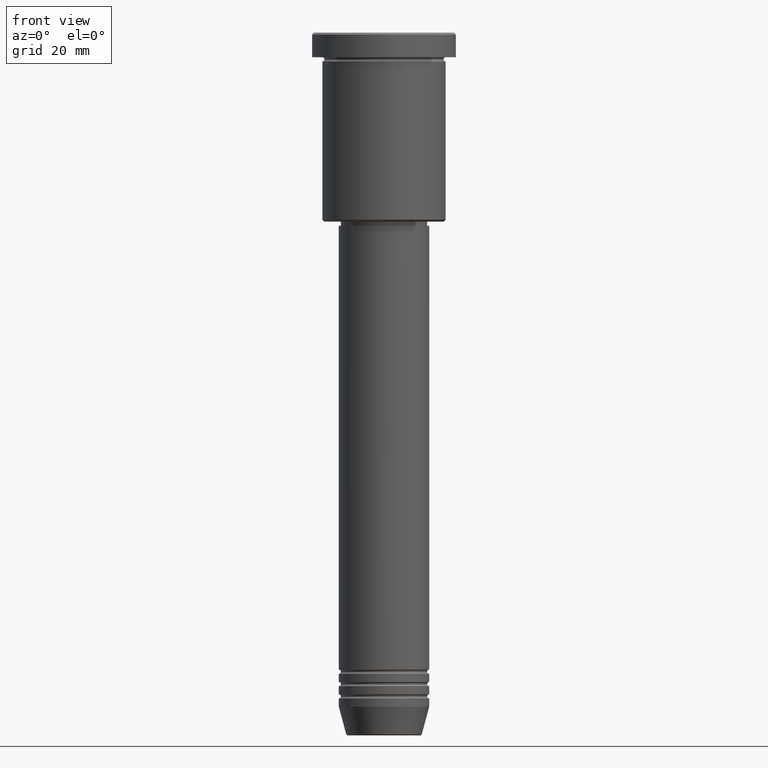
[diagram: clean part render]
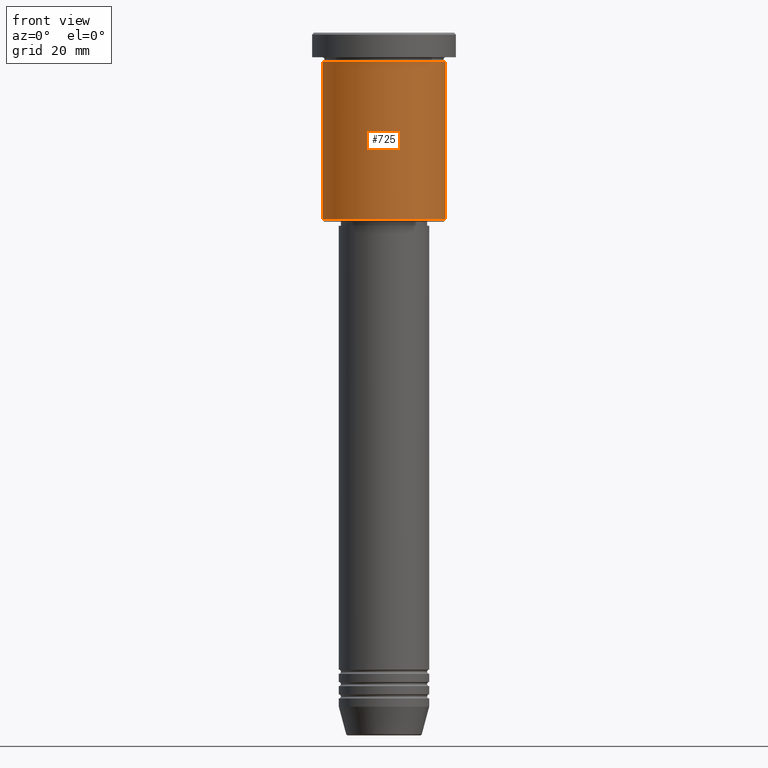
[diagram: same view with one face highlighted and labeled with its STEP entity id]
A machine part, front view. The second image highlights one B-rep face of the part: STEP entity #725.
In plain terms, the highlighted cylindrical surface (partial cylindrical patch) has radius 15 mm, axis along (-0, -0, 1).
Its self-contained STEP definition (entity closure, byte-faithful):
#5 = CIRCLE ( 'NONE', #1005, 15.00000000000000000 ) ;
#44 = VERTEX_POINT ( 'NONE', #337 ) ;
#60 = VECTOR ( 'NONE', #363, 1000.000000000000000 ) ;
#80 = EDGE_CURVE ( 'NONE', #930, #1011, #5, .T. ) ;
#104 = CARTESIAN_POINT ( 'NONE',  ( 15.00000000000000000, 0.000000000000000000, 0.000000000000000000 ) ) ;
#119 = AXIS2_PLACEMENT_3D ( 'NONE', #358, #1090, #834 ) ;
#154 = CARTESIAN_POINT ( 'NONE',  ( -15.00000000000000000, 1.836970198721029589E-15, 0.000000000000000000 ) ) ;
#182 = VERTEX_POINT ( 'NONE', #583 ) ;
#259 = LINE ( 'NONE', #104, #874 ) ;
#337 = CARTESIAN_POINT ( 'NONE',  ( 15.00000000000000000, 0.000000000000000000, -6.999999999999995559 ) ) ;
#340 = EDGE_CURVE ( 'NONE', #1011, #44, #259, .T. ) ;
#358 = CARTESIAN_POINT ( 'NONE',  ( 0.000000000000000000, 0.000000000000000000, 0.000000000000000000 ) ) ;
#363 = DIRECTION ( 'NONE',  ( -0.000000000000000000, -0.000000000000000000, 1.000000000000000000 ) ) ;
#381 = EDGE_CURVE ( 'NONE', #182, #44, #831, .T. ) ;
#382 = DIRECTION ( 'NONE',  ( 1.000000000000000000, 0.000000000000000000, 0.000000000000000000 ) ) ;
#434 = DIRECTION ( 'NONE',  ( -0.000000000000000000, -0.000000000000000000, 1.000000000000000000 ) ) ;
#444 = CARTESIAN_POINT ( 'NONE',  ( -15.00000000000000000, 1.836970198721029589E-15, -45.49999999999997158 ) ) ;
#451 = ORIENTED_EDGE ( 'NONE', *, *, #710, .F. ) ;
#467 = ORIENTED_EDGE ( 'NONE', *, *, #340, .T. ) ;
#534 = CARTESIAN_POINT ( 'NONE',  ( 0.000000000000000000, 0.000000000000000000, -45.49999999999997158 ) ) ;
#583 = CARTESIAN_POINT ( 'NONE',  ( -15.00000000000000000, 1.836970198721029589E-15, -6.999999999999995559 ) ) ;
#649 = DIRECTION ( 'NONE',  ( -0.000000000000000000, -0.000000000000000000, 1.000000000000000000 ) ) ;
#696 = AXIS2_PLACEMENT_3D ( 'NONE', #739, #649, #382 ) ;
#707 = LINE ( 'NONE', #154, #60 ) ;
#710 = EDGE_CURVE ( 'NONE', #930, #182, #707, .T. ) ;
#725 = ADVANCED_FACE ( 'NONE', ( #911 ), #798, .T. ) ;
#739 = CARTESIAN_POINT ( 'NONE',  ( 0.000000000000000000, 0.000000000000000000, -6.999999999999995559 ) ) ;
#798 = CYLINDRICAL_SURFACE ( 'NONE', #119, 15.00000000000000000 ) ;
#830 = ORIENTED_EDGE ( 'NONE', *, *, #80, .T. ) ;
#831 = CIRCLE ( 'NONE', #696, 15.00000000000000000 ) ;
#834 = DIRECTION ( 'NONE',  ( 1.000000000000000000, 0.000000000000000000, 0.000000000000000000 ) ) ;
#874 = VECTOR ( 'NONE', #935, 1000.000000000000000 ) ;
#885 = DIRECTION ( 'NONE',  ( -1.000000000000000000, 0.000000000000000000, 0.000000000000000000 ) ) ;
#911 = FACE_OUTER_BOUND ( 'NONE', #1041, .T. ) ;
#930 = VERTEX_POINT ( 'NONE', #444 ) ;
#935 = DIRECTION ( 'NONE',  ( -0.000000000000000000, -0.000000000000000000, 1.000000000000000000 ) ) ;
#947 = ORIENTED_EDGE ( 'NONE', *, *, #381, .F. ) ;
#971 = CARTESIAN_POINT ( 'NONE',  ( 15.00000000000000000, 0.000000000000000000, -45.49999999999997158 ) ) ;
#1005 = AXIS2_PLACEMENT_3D ( 'NONE', #534, #434, #885 ) ;
#1011 = VERTEX_POINT ( 'NONE', #971 ) ;
#1041 = EDGE_LOOP ( 'NONE', ( #451, #830, #467, #947 ) ) ;
#1090 = DIRECTION ( 'NONE',  ( -0.000000000000000000, -0.000000000000000000, 1.000000000000000000 ) ) ;